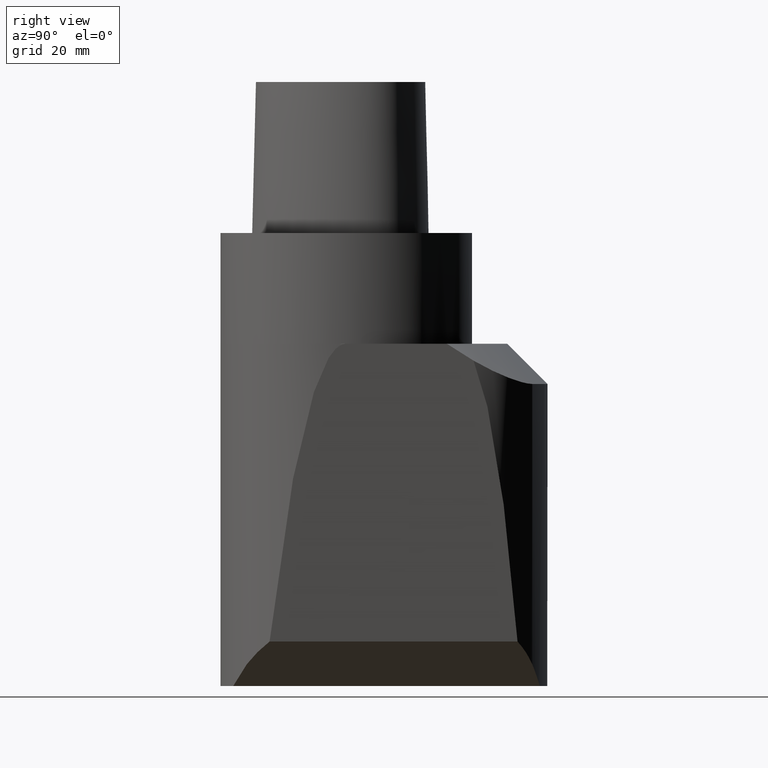
[diagram: clean part render]
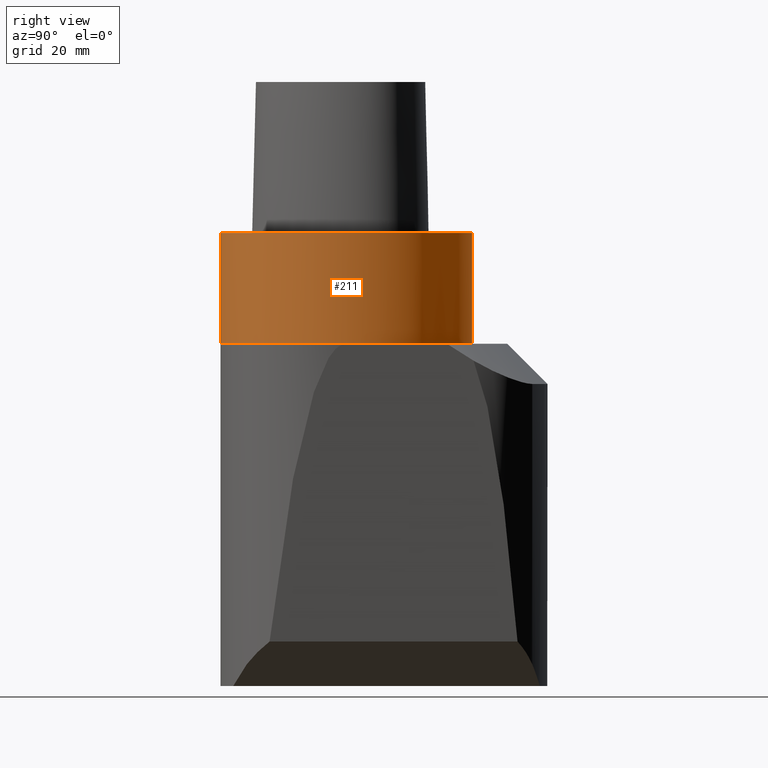
[diagram: same view with one face highlighted and labeled with its STEP entity id]
A machine part, right view. The second image highlights one B-rep face of the part: STEP entity #211.
In plain terms, the highlighted cylindrical surface (bore or boss wall) has radius 24.99 mm, axis along (0, -0, -1).
Its self-contained STEP definition (entity closure, byte-faithful):
#90=EDGE_CURVE('240[2]',#256,#256,#257,.T.);
#192=EDGE_CURVE('240[2]',#398,#398,#399,.T.);
#211=ADVANCED_FACE('240[2]',(#421,#422),#423,.T.);
#256=VERTEX_POINT('',#465);
#257=CIRCLE('',#466,24.9899999999988);
#398=VERTEX_POINT('',#1282);
#399=CIRCLE('',#1283,24.9899999999999);
#421=FACE_BOUND('',#1316,.T.);
#422=FACE_BOUND('',#1317,.T.);
#423=CYLINDRICAL_SURFACE('',#1318,24.9899999999993);
#465=CARTESIAN_POINT('',(5.52202633654708E-029,24.9899999999988,-9.09494701772928E-013));
#466=AXIS2_PLACEMENT_3D('',#1359,#1360,#1361);
#1282=CARTESIAN_POINT('',(1.34711147906215E-015,24.9899999999992,-22.000000000001));
#1283=AXIS2_PLACEMENT_3D('',#1500,#1501,#1502);
#1316=EDGE_LOOP('',(#1530));
#1317=EDGE_LOOP('',(#1531));
#1318=AXIS2_PLACEMENT_3D('',#1532,#1533,#1534);
#1359=CARTESIAN_POINT('',(0.0,0.0,0.0));
#1360=DIRECTION('',(6.12323399573677E-017,-3.61987396425892E-014,-1.0));
#1361=DIRECTION('',(2.2117063790925E-030,1.0,-3.61987396425892E-014));
#1500=CARTESIAN_POINT('',(1.34711147906209E-015,-7.38964445190504E-013,-22.0000000000001));
#1501=DIRECTION('',(6.12323399573677E-017,-3.61987396425892E-014,-1.0));
#1502=DIRECTION('',(2.2117063790925E-030,1.0,-3.61987396425892E-014));
#1530=ORIENTED_EDGE('',*,*,#192,.F.);
#1531=ORIENTED_EDGE('',*,*,#90,.T.);
#1532=CARTESIAN_POINT('',(6.73555739531046E-016,-3.41060513164848E-013,-11.0));
#1533=DIRECTION('',(6.12323399573677E-017,-3.61987396425892E-014,-1.0));
#1534=DIRECTION('',(2.2117063790925E-030,1.0,-3.61987396425892E-014));